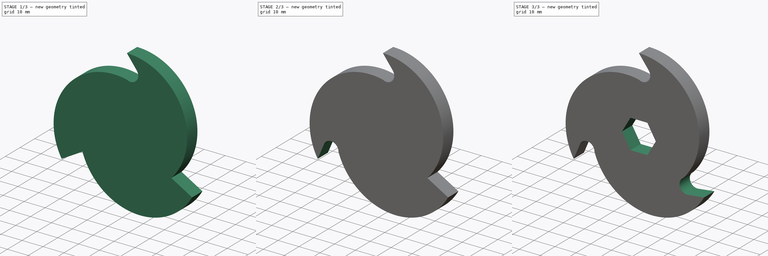
[diagram: build sequence overview — one tinted view per stage of 3, left to right]
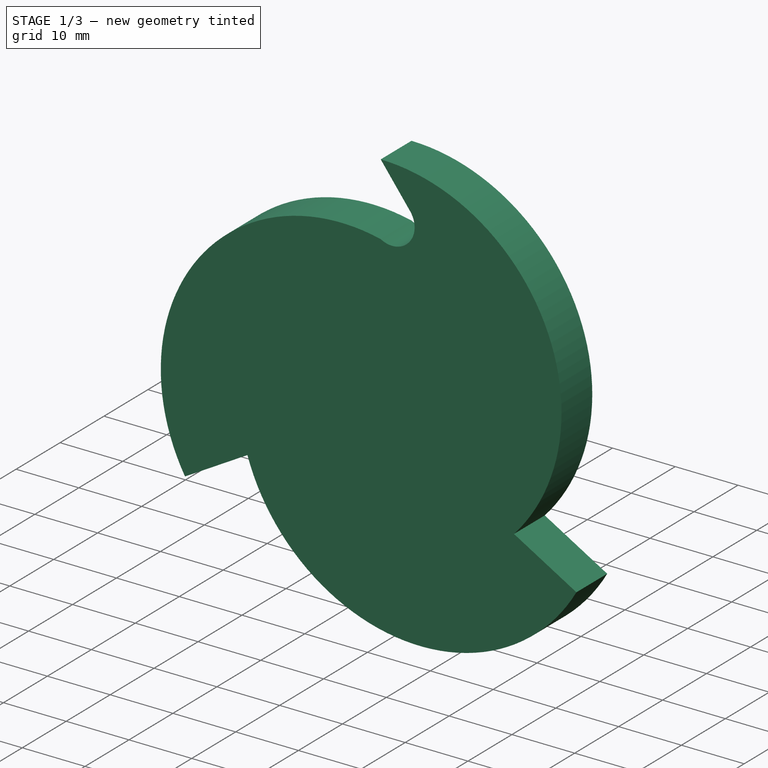
[diagram: stage 1 of 3 — iso view after this stage's code; geometry added in this stage tinted green]
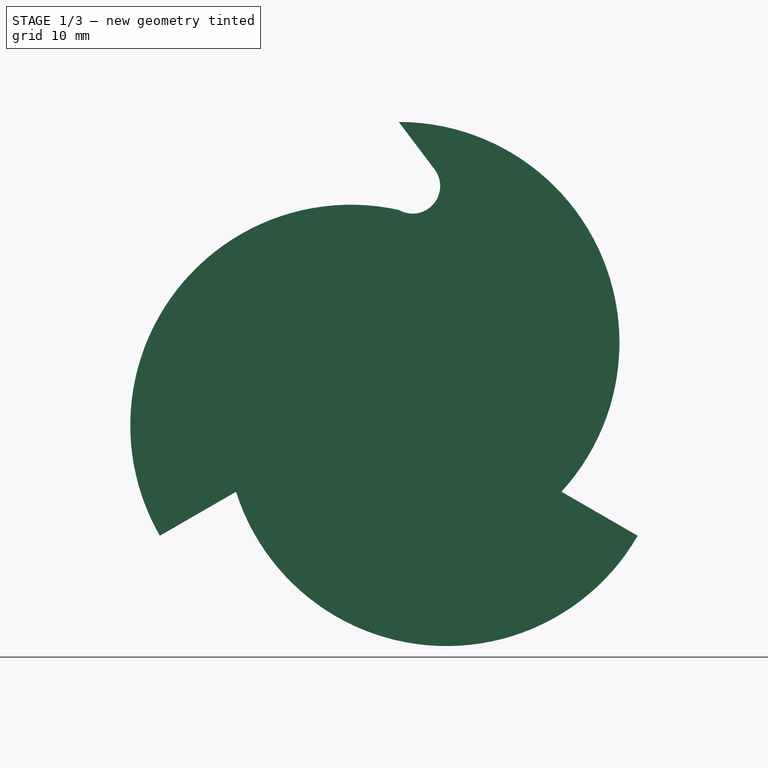
[diagram: stage 1 of 3 — front view after this stage's code; geometry added in this stage tinted green]
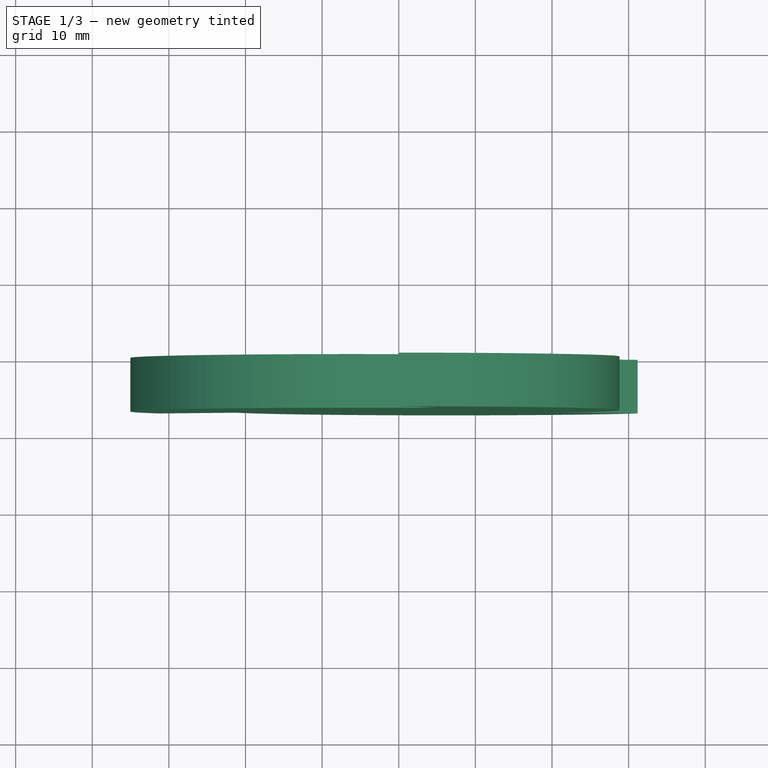
[diagram: stage 1 of 3 — top view after this stage's code; geometry added in this stage tinted green]
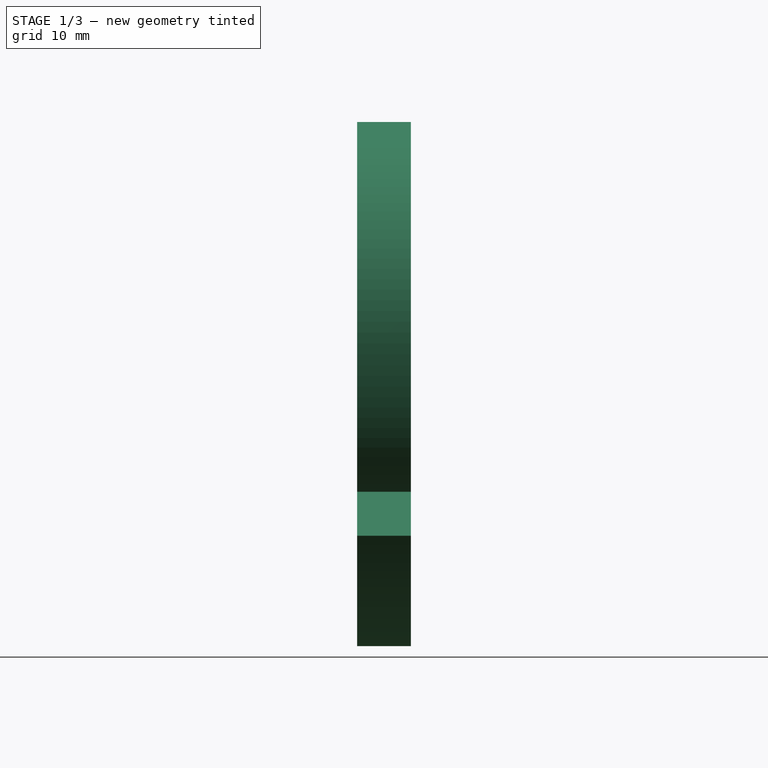
[diagram: stage 1 of 3 — right view after this stage's code; geometry added in this stage tinted green]
FCSTD DOCUMENT  (FreeCAD 0.21R33668 +26 (Git))
Label: cuchilla
License: All rights reserved
LicenseURL: https://en.wikipedia.org/wiki/All_rights_reserved
objects: Sketcher::SketchObject×6, PartDesign::Pocket×4, PartDesign::Pad×1, PartDesign::Body×1, App::Part×1
note: 17 computed .brp shape members not serialized (recipe doc carries the construction recipe); baked Part::Feature solids carry a one-line shape summary decoded from their .brp

FEATURE [Sketcher::SketchObject] Sketch
  FullyConstrained = false
  MapMode = 5
  Placement = pos=(0,0,0) rot=(1,0,0;1.5708rad)
  Support = -> [XZ_Plane001]
  sketch-geometry (10):
    g0: Circle CenterX=0 CenterY=0 CenterZ=0 NormalX=0 NormalY=0 NormalZ=1 AngleXU=0 Radius=36
    g1: LineSegment StartX=0 StartY=0 StartZ=0 EndX=0 EndY=36 EndZ=0
    g2: LineSegment StartX=0 StartY=0 StartZ=0 EndX=31.1769 EndY=-18 EndZ=0
    g3: LineSegment StartX=0 StartY=0 StartZ=0 EndX=-31.1769 EndY=-18 EndZ=0
    g4: ArcOfCircle CenterX=0 CenterY=7.2 CenterZ=0 NormalX=0 NormalY=0 NormalZ=1 AngleXU=0 Radius=28.8 StartAngle=5.54135 EndAngle=7.85398
    g5: ArcOfCircle CenterX=6.23538 CenterY=-3.6 CenterZ=0 NormalX=0 NormalY=0 NormalZ=1 AngleXU=0 Radius=28.8 StartAngle=3.44696 EndAngle=5.75959
    g6: ArcOfCircle CenterX=-6.23538 CenterY=-3.6 CenterZ=0 NormalX=0 NormalY=0 NormalZ=1 AngleXU=0 Radius=28.8 StartAngle=1.35256 EndAngle=3.66519
    g7: LineSegment StartX=-6.62109e-08 StartY=24.5169 StartZ=0 EndX=-6.62109e-08 EndY=36 EndZ=0
    g8: LineSegment StartX=-31.1769 StartY=-18 StartZ=0 EndX=-21.2323 EndY=-12.2584 EndZ=0
    g9: LineSegment StartX=21.2323 StartY=-12.2584 StartZ=0 EndX=31.1769 EndY=-18 EndZ=0
  constraints (27):
    c: Diameter(g0) = 72
    c: PointOnObject(g1,g0)
    c: Vertical(g1)
    c: PointOnObject(g2,g0)
    c: PointOnObject(g3,g0)
    c: Angle(g1,g3) = 2.0944
    c: Angle(g2,g1) = 2.0944
    c: PointOnObject(g4,g1)
    c: PointOnObject(g1,g4)
    c: PointOnObject(g5,g2)
    c: PointOnObject(g6,g3)
    c: Diameter(g6) = 57.6
    c: Diameter(g4) = 57.6
    c: Diameter(g5) = 57.6
    c: PointOnObject(g4,g0)
    c: Tangent(g6,g0) = -1.5708
    c: Tangent(g5,g0) = -1.5708
    c: PointOnObject(g4,g6)
    c: Coincident(g7,g4)
    c: Vertical(g7)
    c: PointOnObject(g7,g5)
    c: PointOnObject(g6,g1)
    c: PointOnObject(g5,g3)
    c: Coincident(g8,g6)
    c: Coincident(g8,g5)
    c: Coincident(g9,g4)
    c: Coincident(g9,g5)
FEATURE [PartDesign::Pad] Pad
  Direction = (0,-1,2e-16)
  Length = 7
  Length2 = 10
  Placement = pos=(0,0,0) rot=(1,0,0;1.5708rad)
  Profile = -> Sketch
  ReferenceAxis = -> Sketch [N_Axis]
  Type = 0
FEATURE [Sketcher::SketchObject] Sketch001
  ExternalGeometry = -> [Pad]
  FullyConstrained = false
  MapMode = 5
  Placement = pos=(0,-7,1.6e-15) rot=(1,0,0;1.5708rad)
  Support = -> [Pad]
  sketch-geometry (5):
    g0: ArcOfCircle CenterX=1.8 CenterY=27.6346 CenterZ=0 NormalX=0 NormalY=0 NormalZ=1 AngleXU=0 Radius=3.6 StartAngle=4.18879 EndAngle=6.92936
    g1: LineSegment StartX=-1.8e-15 StartY=24.5169 StartZ=0 EndX=1.8 EndY=27.6346 EndZ=0
    g2: LineSegment StartX=-6.62109e-08 StartY=36 StartZ=0 EndX=4.67422 EndY=29.8023 EndZ=0
    g3: LineSegment StartX=-6.62109e-08 StartY=36 StartZ=0 EndX=-8.5496 EndY=36 EndZ=0
    g4: LineSegment StartX=-8.5496 StartY=36 StartZ=0 EndX=-1.8e-15 EndY=24.5169 EndZ=0
  constraints (11):
    c: Coincident(g0,g-3)
    c: Coincident(g1,g0)
    c: Coincident(g1,g0)
    c: Angle(g-2,g1) = 2.61799
    c: Radius(g0) = 3.6
    c: Coincident(g2,g-4)
    c: Coincident(g3,g2)
    c: Horizontal(g3)
    c: Coincident(g4,g3)
    c: Coincident(g4,g0)
    c: Tangent(g2,g0) = 1.5708
FEATURE [PartDesign::Pocket] Pocket
  BaseFeature = -> Pad
  Direction = (0,1,-2e-16)
  Length = 7
  Length2 = 5
  Placement = pos=(0,0,0) rot=(1,0,0;1.5708rad)
  Profile = -> Sketch001
  ReferenceAxis = -> Sketch001 [N_Axis]
  Type = 0
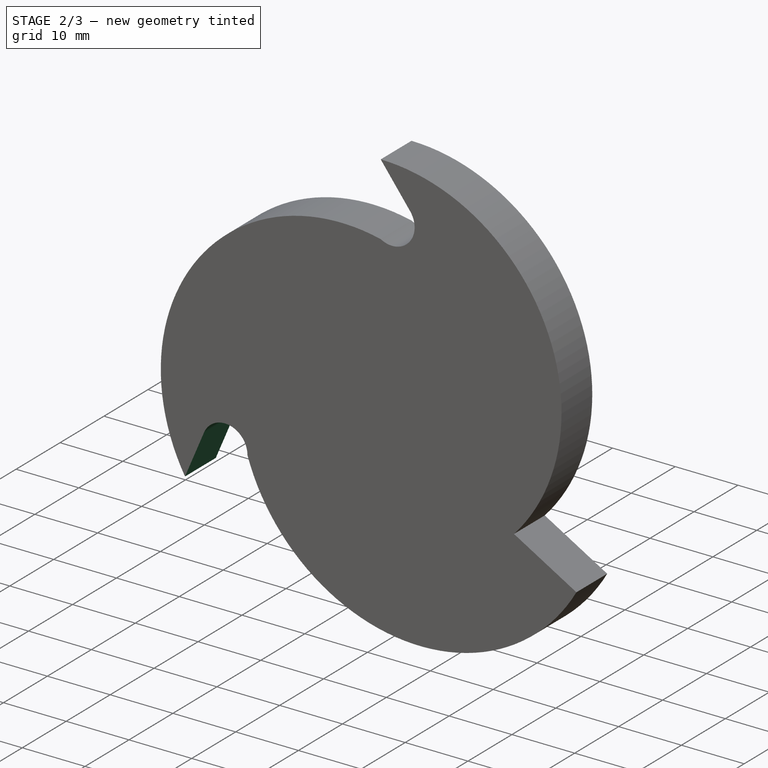
[diagram: stage 2 of 3 — iso view after this stage's code; geometry added in this stage tinted green]
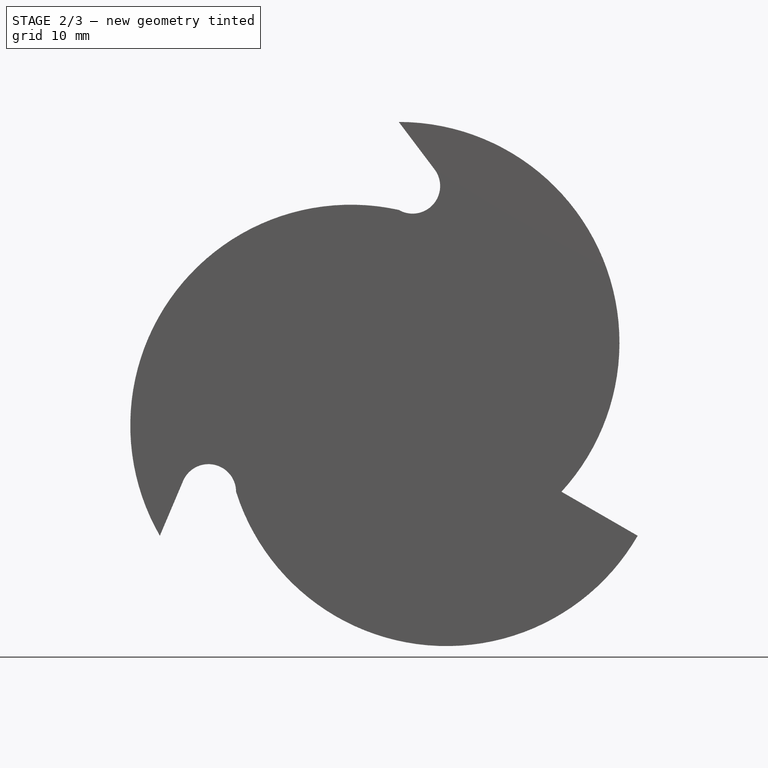
[diagram: stage 2 of 3 — front view after this stage's code; geometry added in this stage tinted green]
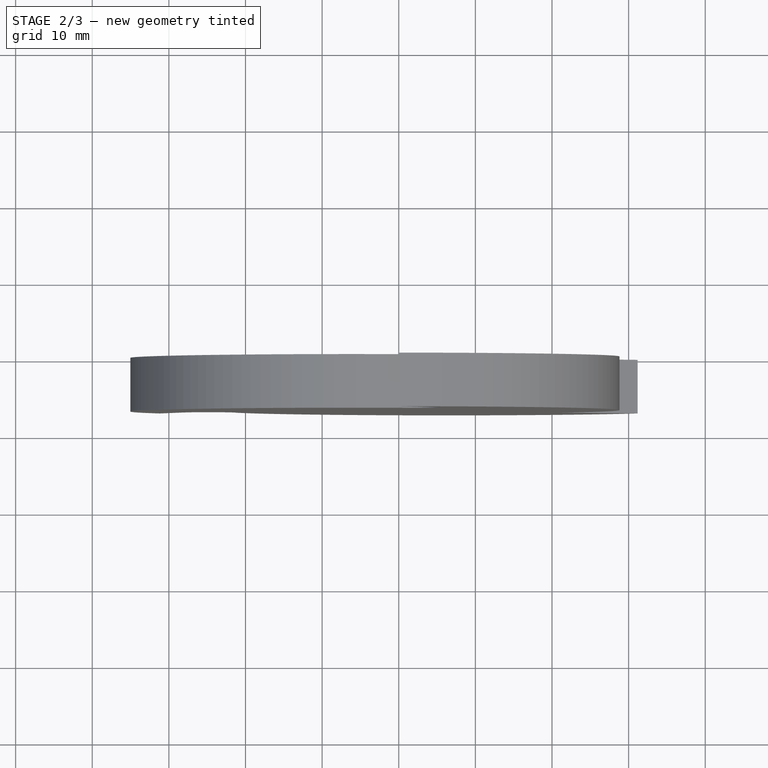
[diagram: stage 2 of 3 — top view after this stage's code; geometry added in this stage tinted green]
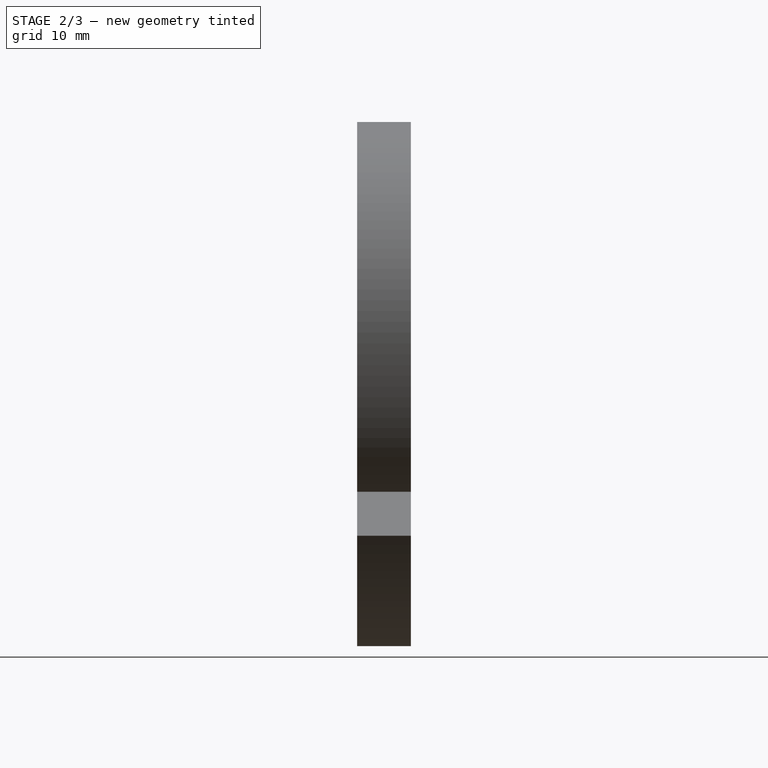
[diagram: stage 2 of 3 — right view after this stage's code; geometry added in this stage tinted green]
FEATURE [Sketcher::SketchObject] Sketch002
  ExternalGeometry = -> [Pocket]
  FullyConstrained = false
  MapMode = 5
  Placement = pos=(0,-7,1.6e-15) rot=(1,0,0;1.5708rad)
  Support = -> [Pocket]
  sketch-geometry (6):
    g0: ArcOfCircle CenterX=-24.8323 CenterY=-12.2584 CenterZ=0 NormalX=0 NormalY=0 NormalZ=1 AngleXU=0 Radius=3.6 StartAngle=0 EndAngle=2.74057
    g1: LineSegment StartX=-31.1769 StartY=-18 StartZ=0 EndX=-28.1466 EndY=-10.8531 EndZ=0
    g2: LineSegment StartX=-31.1769 StartY=-18 StartZ=0 EndX=-29.3799 EndY=-21.05 EndZ=0
    g3: LineSegment StartX=-29.3721 StartY=-21.0484 StartZ=0 EndX=-21.2323 EndY=-12.2584 EndZ=0
    g4: LineSegment StartX=-29.3799 StartY=-21.05 StartZ=0 EndX=-29.3721 EndY=-21.0484 EndZ=0
    g5: LineSegment StartX=-21.2323 StartY=-12.2584 StartZ=0 EndX=-24.8323 EndY=-12.2584 EndZ=0
  constraints (11):
    c: Coincident(g0,g-3)
    c: Radius(g0) = 3.6
    c: Coincident(g1,g-3)
    c: Tangent(g1,g0) = 1.5708
    c: Coincident(g2,g1)
    c: Coincident(g3,g0)
    c: Coincident(g4,g2)
    c: Coincident(g4,g3)
    c: Coincident(g5,g0)
    c: Coincident(g5,g0)
    c: Horizontal(g5)
FEATURE [PartDesign::Pocket] Pocket001
  BaseFeature = -> Pocket
  Direction = (0,1,-2e-16)
  Length = 7
  Length2 = 5
  Placement = pos=(0,0,0) rot=(1,0,0;1.5708rad)
  Profile = -> Sketch002
  ReferenceAxis = -> Sketch002 [N_Axis]
  Type = 0
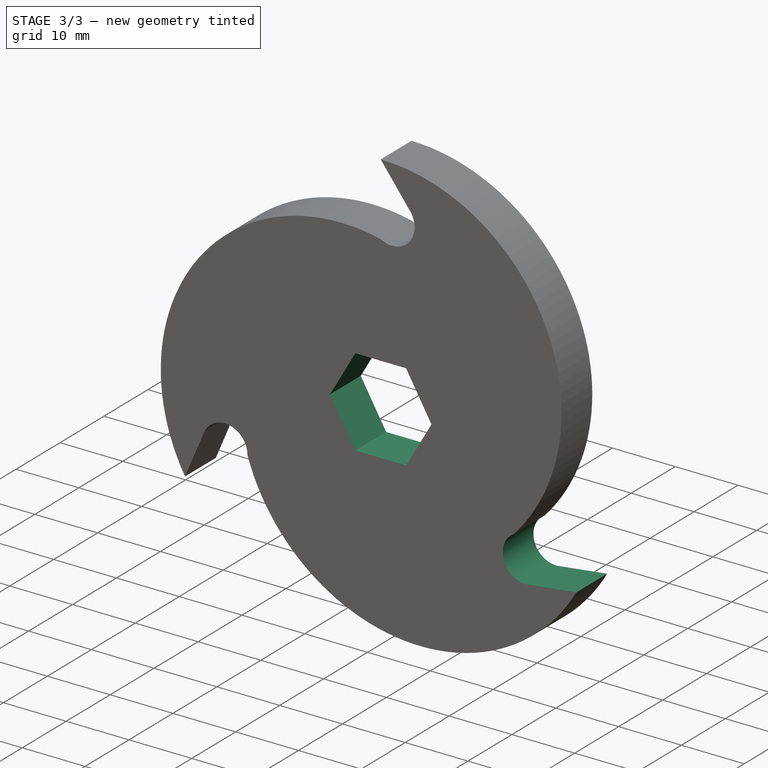
[diagram: stage 3 of 3 — iso view after this stage's code; geometry added in this stage tinted green]
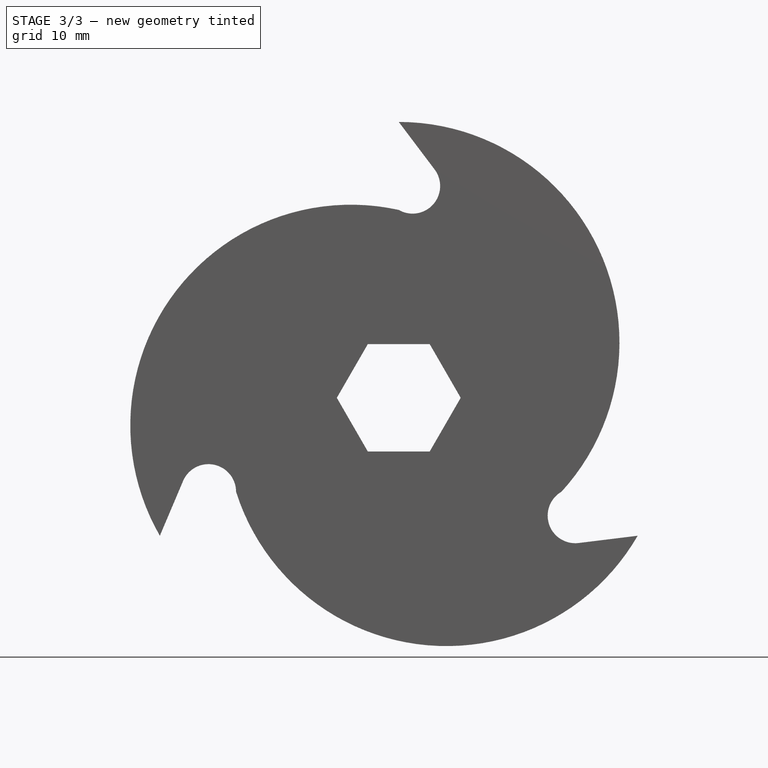
[diagram: stage 3 of 3 — front view after this stage's code; geometry added in this stage tinted green]
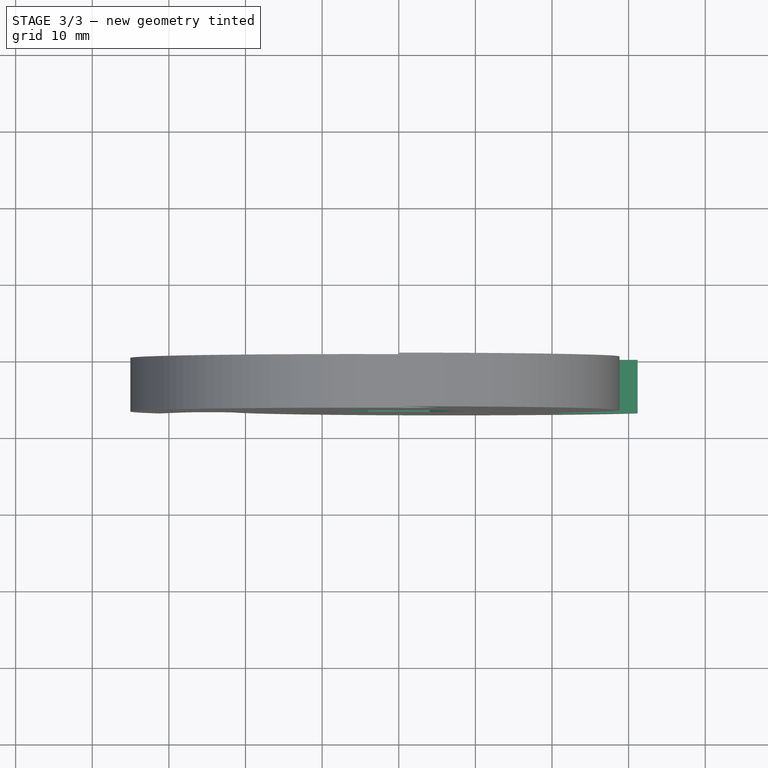
[diagram: stage 3 of 3 — top view after this stage's code; geometry added in this stage tinted green]
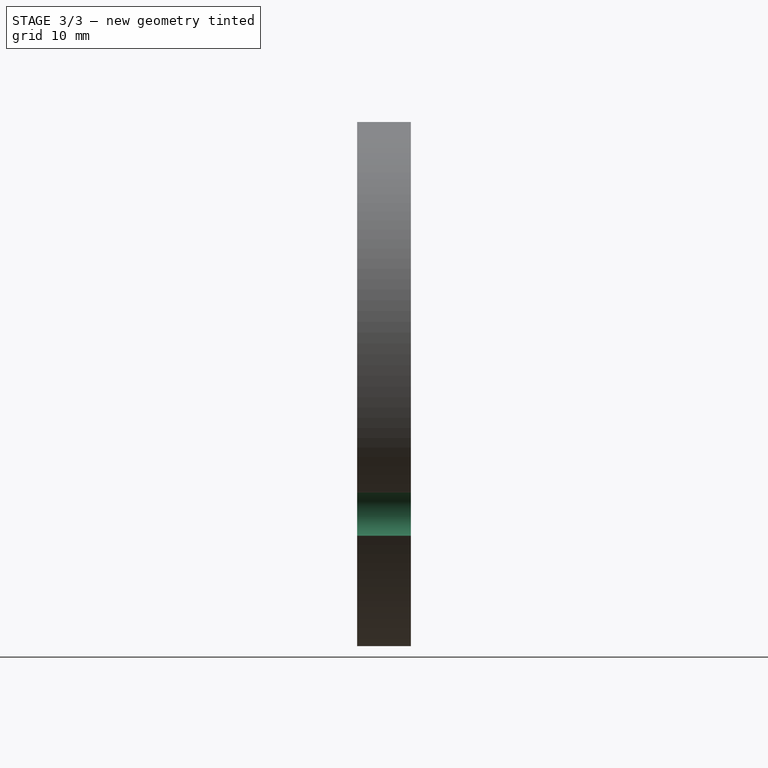
[diagram: stage 3 of 3 — right view after this stage's code; geometry added in this stage tinted green]
FEATURE [Sketcher::SketchObject] Sketch003
  ExternalGeometry = -> [Pocket001]
  FullyConstrained = false
  MapMode = 5
  Placement = pos=(0,-7,1.6e-15) rot=(1,0,0;1.5708rad)
  Support = -> [Pocket001]
  sketch-geometry (5):
    g0: ArcOfCircle CenterX=23.0323 CenterY=-15.3761 CenterZ=0 NormalX=0 NormalY=0 NormalZ=1 AngleXU=0 Radius=3.6 StartAngle=2.0944 EndAngle=4.83496
    g1: LineSegment StartX=21.2323 StartY=-12.2584 StartZ=0 EndX=23.0323 EndY=-15.3761 EndZ=0
    g2: LineSegment StartX=31.1769 StartY=-18 StartZ=0 EndX=23.4724 EndY=-18.9491 EndZ=0
    g3: LineSegment StartX=31.1769 StartY=-18 StartZ=0 EndX=34.7846 EndY=-12.2584 EndZ=0
    g4: LineSegment StartX=34.7846 StartY=-12.2584 StartZ=0 EndX=21.2323 EndY=-12.2584 EndZ=0
  constraints (11):
    c: Coincident(g0,g-3)
    c: Coincident(g1,g0)
    c: Coincident(g1,g0)
    c: Angle(g1,g-3) = 0.523599
    c: Radius(g0) = 3.6
    c: Coincident(g2,g-3)
    c: Tangent(g2,g0) = 1.5708
    c: Coincident(g3,g2)
    c: Coincident(g4,g3)
    c: Coincident(g4,g0)
    c: Horizontal(g4)
FEATURE [PartDesign::Pocket] Pocket002
  BaseFeature = -> Pocket001
  Direction = (0,1,-2e-16)
  Length = 7
  Length2 = 5
  Placement = pos=(0,0,0) rot=(1,0,0;1.5708rad)
  Profile = -> Sketch003
  ReferenceAxis = -> Sketch003 [N_Axis]
  Type = 0
FEATURE [Sketcher::SketchObject] Sketch004
  FullyConstrained = true
  MapMode = 5
  Placement = pos=(0,0,0) rot=(1,0,0;1.5708rad)
  Support = -> [XZ_Plane001]
FEATURE [Sketcher::SketchObject] Sketch005
  FullyConstrained = true
  MapMode = 5
  Placement = pos=(0,-7,1.6e-15) rot=(1,0,0;1.5708rad)
  Support = -> [Pocket002]
  sketch-geometry (7):
    g0: LineSegment StartX=8.0829 StartY=0 StartZ=0 EndX=4.04145 EndY=7 EndZ=0
    g1: LineSegment StartX=4.04145 StartY=7 StartZ=0 EndX=-4.04145 EndY=7 EndZ=0
    g2: LineSegment StartX=-4.04145 StartY=7 StartZ=0 EndX=-8.0829 EndY=0 EndZ=0
    g3: LineSegment StartX=-8.0829 StartY=0 StartZ=0 EndX=-4.04145 EndY=-7 EndZ=0
    g4: LineSegment StartX=-4.04145 StartY=-7 StartZ=0 EndX=4.04145 EndY=-7 EndZ=0
    g5: LineSegment StartX=4.04145 StartY=-7 StartZ=0 EndX=8.0829 EndY=0 EndZ=0
    g6: Circle CenterX=0 CenterY=0 CenterZ=0 NormalX=0 NormalY=0 NormalZ=1 AngleXU=0 Radius=8.0829
  constraints (16):
    c: Coincident(g0,g1)
    c: Coincident(g1,g2)
    c: Coincident(g2,g3)
    c: Coincident(g3,g4)
    c: Coincident(g4,g5)
    c: Coincident(g5,g0)
    c: Equal(g0, g1-g5) x5
    c: PointOnObject(g0,g6)
    c: PointOnObject(g1,g6)
    c: PointOnObject(g2,g6)
    c: PointOnObject(g3,g6)
    c: PointOnObject(g4,g6)
    c: PointOnObject(g5,g6)
    c: Coincident(g6,g-1)
    c: PointOnObject(g5,g-1)
    c: DistanceY(g4,g0) = 14
FEATURE [PartDesign::Pocket] Pocket003
  BaseFeature = -> Pocket002
  Direction = (0,1,-2e-16)
  Length = 7
  Length2 = 5
  Placement = pos=(0,0,0) rot=(1,0,0;1.5708rad)
  Profile = -> Sketch005
  ReferenceAxis = -> Sketch005 [N_Axis]
  Type = 0
FEATURE [PartDesign::Body] Body
  Group = -> [Sketch,Pad,Sketch001,Pocket,Sketch002,Pocket001,Sketch003,Pocket002,Sketch004,Sketch005,Pocket003]
  Origin = -> Origin001
  Tip = -> Pocket003
FEATURE [App::Part] Part
  Group = -> [Body]
  Origin = -> Origin
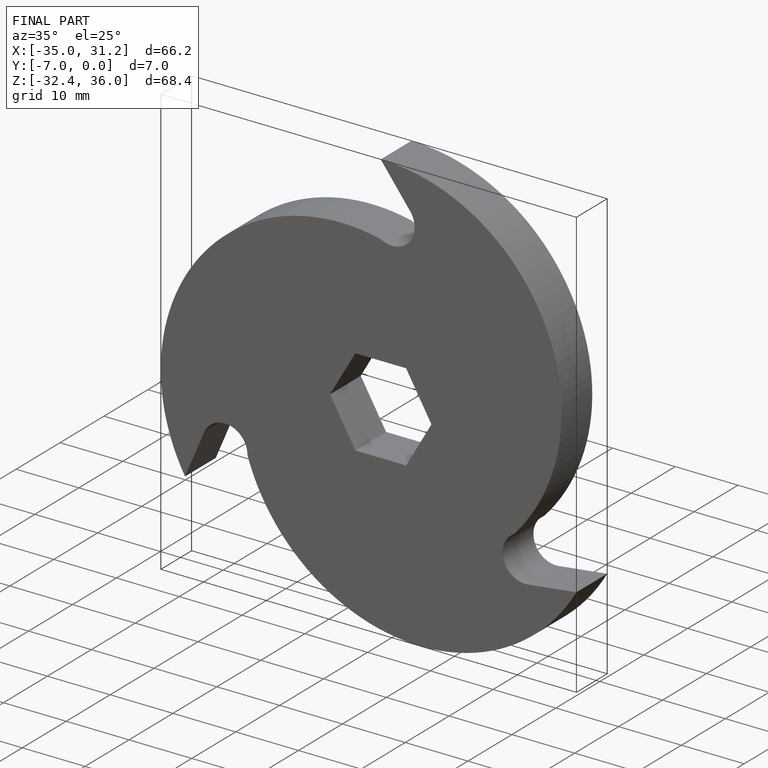
[diagram: finished part — iso view with bounding-box wireframe]
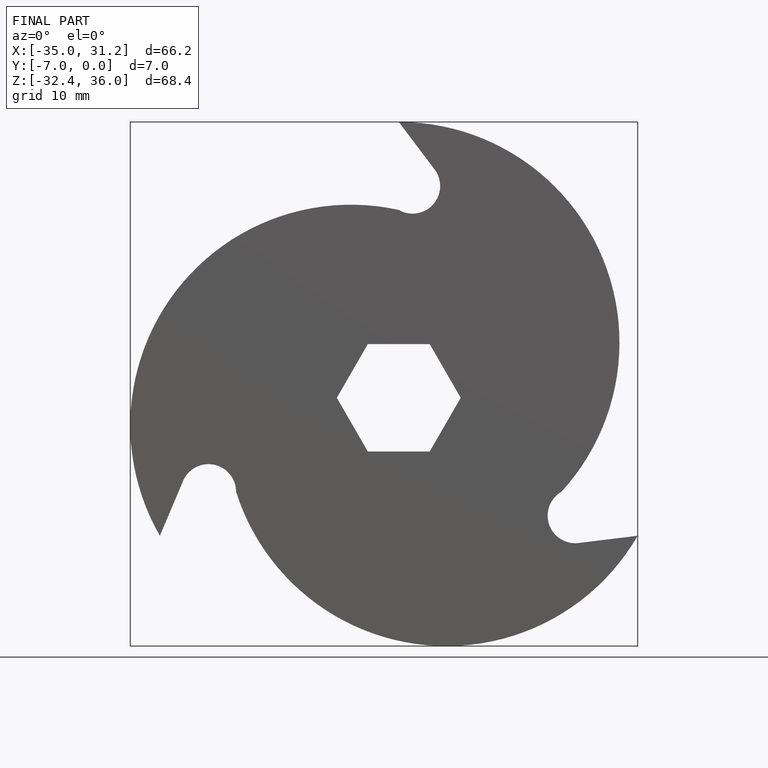
[diagram: finished part — front view with bounding-box wireframe]
